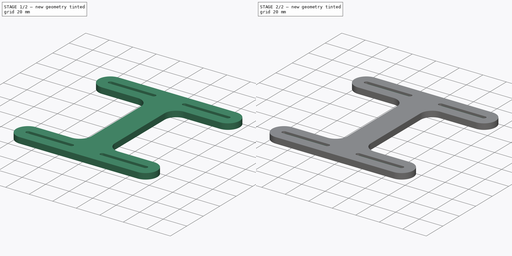
[diagram: build sequence overview — one tinted view per stage of 2, left to right]
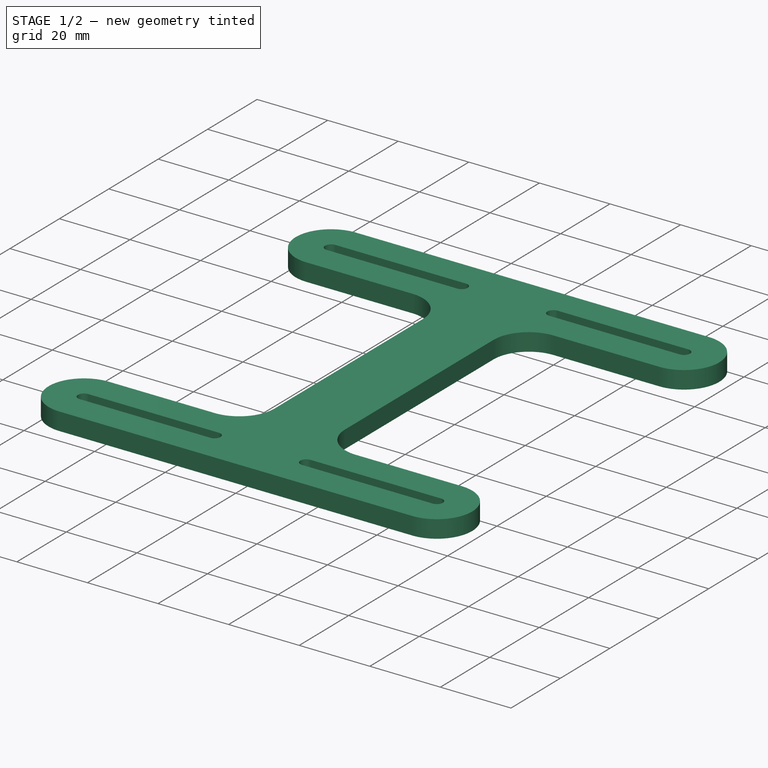
[diagram: stage 1 of 2 — iso view after this stage's code; geometry added in this stage tinted green]
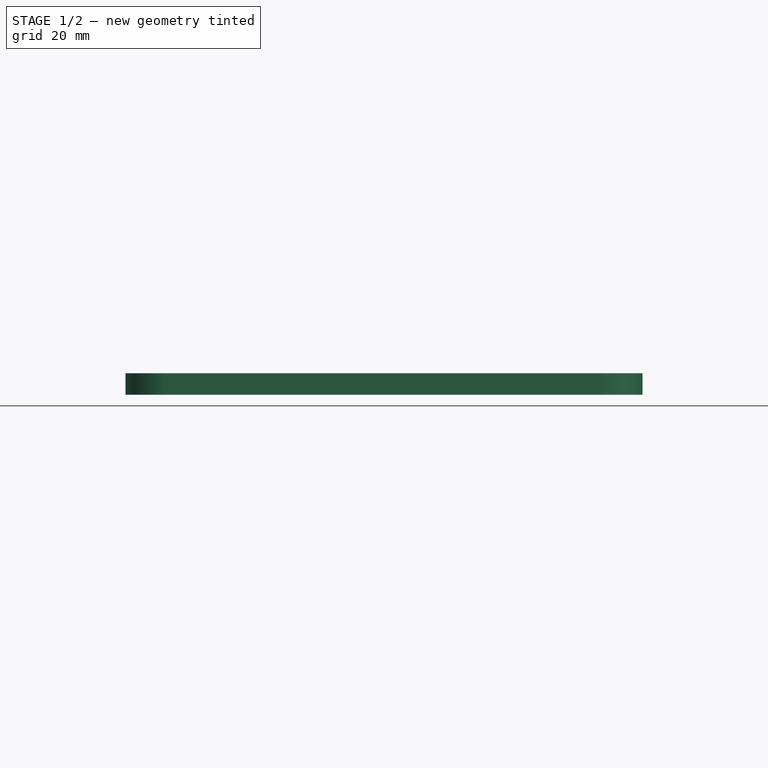
[diagram: stage 1 of 2 — front view after this stage's code; geometry added in this stage tinted green]
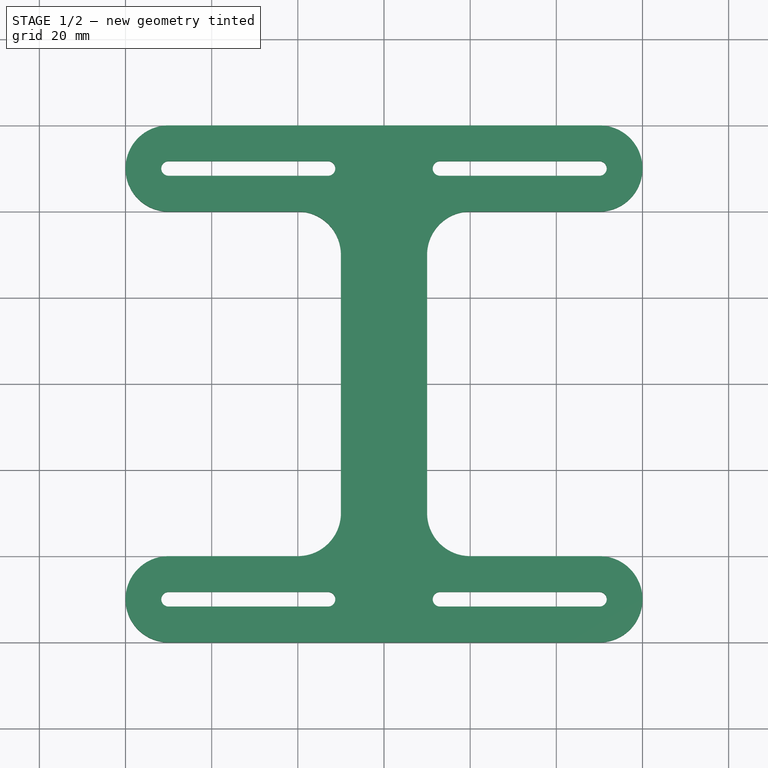
[diagram: stage 1 of 2 — top view after this stage's code; geometry added in this stage tinted green]
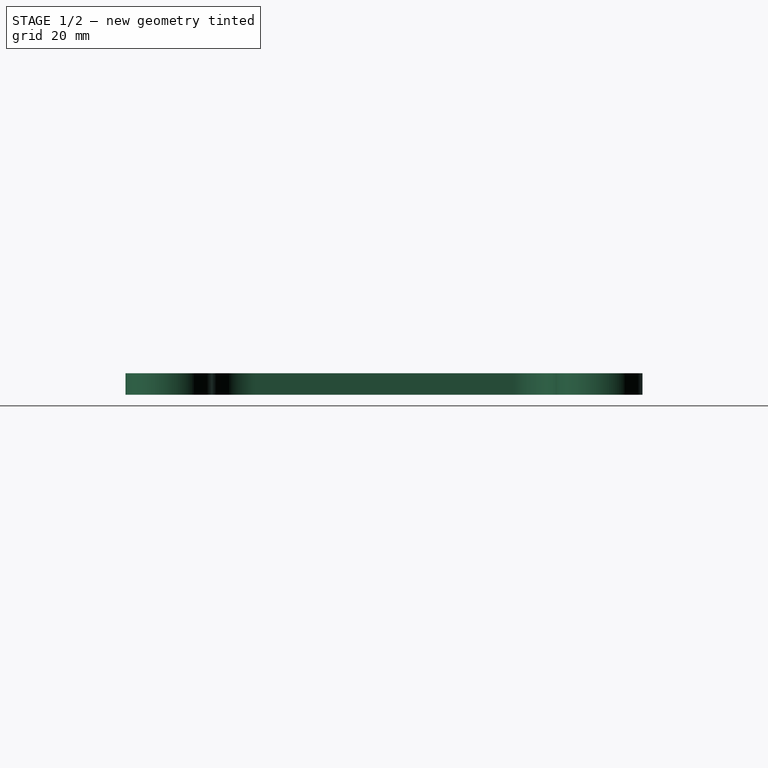
[diagram: stage 1 of 2 — right view after this stage's code; geometry added in this stage tinted green]
FCSTD DOCUMENT  (FreeCAD 0.17R13541 (Git))
Label: FilaRoller2
License: All rights reserved
LicenseURL: http://en.wikipedia.org/wiki/All_rights_reserved
objects: Sketcher::SketchObject×2, Spreadsheet::Sheet×1, PartDesign::Pad×1, PartDesign::Pocket×1, PartDesign::Body×1, App::Part×1
note: 7 computed .brp shape members not serialized (recipe doc carries the construction recipe); baked Part::Feature solids carry a one-line shape summary decoded from their .brp

FEATURE [Spreadsheet::Sheet] Spreadsheet  label="Params"
  cells = A2=StandLength; B2(StandLength)=100; A3=StandWidth; B3(StandWidth)=20; A4=BridgeLength; B4(BridgeLength)=100
FEATURE [Sketcher::SketchObject] Sketch  label="Stand"
  MapMode = 5
  expr: Constraints[179] = Params.StandWidth
  expr: Constraints[80] = Params.BridgeLength
  expr: Constraints[4] = Params.StandLength
  expr: Constraints[3] = Params.StandWidth
  sketch-geometry (66):
    g0: ArcOfCircle CenterX=-50 CenterY=-50 CenterZ=0 NormalX=0 NormalY=0 NormalZ=1 AngleXU=0 Radius=10 StartAngle=1.5708 EndAngle=4.71239
    g1: ArcOfCircle CenterX=50 CenterY=-50 CenterZ=0 NormalX=0 NormalY=0 NormalZ=1 AngleXU=0 Radius=10 StartAngle=4.71239 EndAngle=7.85398
    g2: LineSegment StartX=-50 StartY=-60 StartZ=0 EndX=50 EndY=-60 EndZ=0
    g3: Circle [constr] CenterX=0 CenterY=-50 CenterZ=0 NormalX=0 NormalY=0 NormalZ=1 AngleXU=0 Radius=1.7
    g4: ArcOfCircle CenterX=-50 CenterY=-50 CenterZ=0 NormalX=0 NormalY=0 NormalZ=1 AngleXU=0 Radius=1.7 StartAngle=1.5708 EndAngle=4.71239
    g5: ArcOfCircle CenterX=-13 CenterY=-50 CenterZ=0 NormalX=0 NormalY=0 NormalZ=1 AngleXU=0 Radius=1.7 StartAngle=4.71239 EndAngle=7.85398
    g6: LineSegment StartX=-50 StartY=-51.7 StartZ=0 EndX=-13 EndY=-51.7 EndZ=0
    g7: LineSegment StartX=-50 StartY=-48.3 StartZ=0 EndX=-13 EndY=-48.3 EndZ=0
    g8: ArcOfCircle CenterX=50 CenterY=-50 CenterZ=0 NormalX=0 NormalY=0 NormalZ=1 AngleXU=0 Radius=1.7 StartAngle=4.71239 EndAngle=7.85398
    g9: ArcOfCircle CenterX=13 CenterY=-50 CenterZ=0 NormalX=0 NormalY=0 NormalZ=1 AngleXU=0 Radius=1.7 StartAngle=1.5708 EndAngle=4.71239
    g10: LineSegment StartX=50 StartY=-48.3 StartZ=0 EndX=13 EndY=-48.3 EndZ=0
    g11: LineSegment StartX=50 StartY=-51.7 StartZ=0 EndX=13 EndY=-51.7 EndZ=0
    g12: ArcOfCircle CenterX=-50 CenterY=50 CenterZ=0 NormalX=0 NormalY=0 NormalZ=1 AngleXU=0 Radius=10 StartAngle=1.5708 EndAngle=4.71239
    g13: ArcOfCircle CenterX=50 CenterY=50 CenterZ=0 NormalX=0 NormalY=0 NormalZ=1 AngleXU=0 Radius=10 StartAngle=4.71239 EndAngle=7.85398
    g14: LineSegment StartX=-50 StartY=60 StartZ=0 EndX=50 EndY=60 EndZ=0
    g15: Circle [constr] CenterX=0 CenterY=50 CenterZ=0 NormalX=0 NormalY=0 NormalZ=1 AngleXU=0 Radius=1.7
    g16: ArcOfCircle CenterX=-50 CenterY=50 CenterZ=0 NormalX=0 NormalY=0 NormalZ=1 AngleXU=0 Radius=1.7 StartAngle=1.5708 EndAngle=4.71239
    g17: ArcOfCircle CenterX=-13 CenterY=50 CenterZ=0 NormalX=0 NormalY=0 NormalZ=1 AngleXU=0 Radius=1.7 StartAngle=4.71239 EndAngle=7.85398
    g18: LineSegment StartX=-50 StartY=51.7 StartZ=0 EndX=-13 EndY=51.7 EndZ=0
    g19: LineSegment StartX=-50 StartY=48.3 StartZ=0 EndX=-13 EndY=48.3 EndZ=0
    g20: ArcOfCircle CenterX=50 CenterY=50 CenterZ=0 NormalX=0 NormalY=0 NormalZ=1 AngleXU=0 Radius=1.7 StartAngle=4.71239 EndAngle=7.85398
    g21: ArcOfCircle CenterX=13 CenterY=50 CenterZ=0 NormalX=0 NormalY=0 NormalZ=1 AngleXU=0 Radius=1.7 StartAngle=1.5708 EndAngle=4.71239
    g22: LineSegment StartX=50 StartY=48.3 StartZ=0 EndX=13 EndY=48.3 EndZ=0
    g23: LineSegment StartX=50 StartY=51.7 StartZ=0 EndX=13 EndY=51.7 EndZ=0
    g24: LineSegment [constr] StartX=50 StartY=60 StartZ=0 EndX=50 EndY=40 EndZ=0
    g25: LineSegment [constr] StartX=-50 StartY=60 StartZ=0 EndX=-50 EndY=40 EndZ=0
    g26: LineSegment [constr] StartX=-50 StartY=-40 StartZ=0 EndX=-50 EndY=-60 EndZ=0
    g27: LineSegment [constr] StartX=50 StartY=-40 StartZ=0 EndX=50 EndY=-60 EndZ=0
    g28: LineSegment StartX=-50 StartY=40 StartZ=0 EndX=-20 EndY=40 EndZ=0
    g29: LineSegment StartX=-10 StartY=30 StartZ=0 EndX=-10 EndY=-30 EndZ=0
    g30: LineSegment StartX=-20 StartY=-40 StartZ=0 EndX=-50 EndY=-40 EndZ=0
    g31: LineSegment StartX=50 StartY=40 StartZ=0 EndX=20 EndY=40 EndZ=0
    g32: LineSegment StartX=10 StartY=30 StartZ=0 EndX=10 EndY=-30 EndZ=0
    g33: LineSegment StartX=20 StartY=-40 StartZ=0 EndX=50 EndY=-40 EndZ=0
    g34: ArcOfCircle [constr] CenterX=-13 CenterY=-50 CenterZ=0 NormalX=0 NormalY=0 NormalZ=1 AngleXU=0 Radius=3.4 StartAngle=4.71239 EndAngle=7.85398
    g35: ArcOfCircle [constr] CenterX=-50 CenterY=-50 CenterZ=0 NormalX=0 NormalY=0 NormalZ=1 AngleXU=0 Radius=3.4 StartAngle=1.5708 EndAngle=4.71239
    g36: LineSegment [constr] StartX=-13 StartY=-46.6 StartZ=0 EndX=-50 EndY=-46.6 EndZ=0
    g37: LineSegment [constr] StartX=-13 StartY=-53.4 StartZ=0 EndX=-50 EndY=-53.4 EndZ=0
    g38: LineSegment [constr] StartX=-13 StartY=-46.6 StartZ=0 EndX=-13 EndY=-53.4 EndZ=0
    g39: ArcOfCircle [constr] CenterX=13 CenterY=-50 CenterZ=0 NormalX=0 NormalY=0 NormalZ=1 AngleXU=0 Radius=3.4 StartAngle=1.5708 EndAngle=4.71239
    g40: ArcOfCircle [constr] CenterX=50 CenterY=-50 CenterZ=0 NormalX=0 NormalY=0 NormalZ=1 AngleXU=0 Radius=3.4 StartAngle=4.71239 EndAngle=7.85398
    g41: LineSegment [constr] StartX=13 StartY=-53.4 StartZ=0 EndX=50 EndY=-53.4 EndZ=0
    g42: LineSegment [constr] StartX=13 StartY=-46.6 StartZ=0 EndX=50 EndY=-46.6 EndZ=0
    g43: ArcOfCircle [constr] CenterX=-13 CenterY=50 CenterZ=0 NormalX=0 NormalY=0 NormalZ=1 AngleXU=0 Radius=3.4 StartAngle=4.71239 EndAngle=7.85398
    g44: ArcOfCircle [constr] CenterX=-50 CenterY=50 CenterZ=0 NormalX=0 NormalY=0 NormalZ=1 AngleXU=0 Radius=3.4 StartAngle=1.5708 EndAngle=4.71239
    g45: LineSegment [constr] StartX=-13 StartY=53.4 StartZ=0 EndX=-50 EndY=53.4 EndZ=0
    g46: LineSegment [constr] StartX=-13 StartY=46.6 StartZ=0 EndX=-50 EndY=46.6 EndZ=0
    g47: ArcOfCircle [constr] CenterX=13 CenterY=50 CenterZ=0 NormalX=0 NormalY=0 NormalZ=1 AngleXU=0 Radius=3.4 StartAngle=1.5708 EndAngle=4.71239
    g48: ArcOfCircle [constr] CenterX=50 CenterY=50 CenterZ=0 NormalX=0 NormalY=0 NormalZ=1 AngleXU=0 Radius=3.4 StartAngle=4.71239 EndAngle=7.85398
    g49: LineSegment [constr] StartX=13 StartY=46.6 StartZ=0 EndX=50 EndY=46.6 EndZ=0
    g50: LineSegment [constr] StartX=13 StartY=53.4 StartZ=0 EndX=50 EndY=53.4 EndZ=0
    g51: LineSegment [constr] StartX=13 StartY=-46.6 StartZ=0 EndX=13 EndY=-53.4 EndZ=0
    g52: LineSegment [constr] StartX=13 StartY=53.4 StartZ=0 EndX=13 EndY=46.6 EndZ=0
    g53: LineSegment [constr] StartX=-13 StartY=53.4 StartZ=0 EndX=-13 EndY=46.6 EndZ=0
    g54: ArcOfCircle CenterX=-20 CenterY=30 CenterZ=0 NormalX=0 NormalY=0 NormalZ=1 AngleXU=0 Radius=10 StartAngle=0 EndAngle=1.5708
    g55: ArcOfCircle CenterX=20 CenterY=30 CenterZ=0 NormalX=0 NormalY=0 NormalZ=1 AngleXU=0 Radius=10 StartAngle=1.5708 EndAngle=3.14159
    g56: ArcOfCircle CenterX=20 CenterY=-30 CenterZ=0 NormalX=0 NormalY=0 NormalZ=1 AngleXU=0 Radius=10 StartAngle=3.14159 EndAngle=4.71239
    g57: ArcOfCircle CenterX=-20 CenterY=-30 CenterZ=0 NormalX=0 NormalY=0 NormalZ=1 AngleXU=0 Radius=10 StartAngle=4.71239 EndAngle=6.28319
    g58: LineSegment [constr] StartX=-20 StartY=-30 StartZ=0 EndX=-10 EndY=-30 EndZ=0
    g59: LineSegment [constr] StartX=-20 StartY=-30 StartZ=0 EndX=-20 EndY=-40 EndZ=0
    g60: LineSegment [constr] StartX=20 StartY=-30 StartZ=0 EndX=10 EndY=-30 EndZ=0
    g61: LineSegment [constr] StartX=20 StartY=-30 StartZ=0 EndX=20 EndY=-40 EndZ=0
    g62: LineSegment [constr] StartX=-20 StartY=30 StartZ=0 EndX=-20 EndY=40 EndZ=0
    g63: LineSegment [constr] StartX=-20 StartY=30 StartZ=0 EndX=-10 EndY=30 EndZ=0
    g64: LineSegment [constr] StartX=20 StartY=30 StartZ=0 EndX=20 EndY=40 EndZ=0
    g65: LineSegment [constr] StartX=20 StartY=30 StartZ=0 EndX=10 EndY=30 EndZ=0
  constraints (197):
    c: Horizontal(g2)
    c: Equal(g0,g1)
    c: Symmetric(g0,g1,g3)
    c: DistanceY(g0,g0) = 20
    c: DistanceX(g2,g2) = 100
    c: Horizontal(g6)
    c: Equal(g4,g5)
    c: Coincident(g4,g0)
    c: Horizontal(g10)
    c: Equal(g8,g9)
    c: Coincident(g8,g1)
    c: Equal(g10,g7)
    c: Equal(g5,g9)
    c: DistanceX(g5,g9) = 26
    c: Radius(g3) = 1.7
    c: Equal(g3,g5)
    c: PointOnObject(g3,g-2)
    c: Horizontal(g14)
    c: Equal(g12,g13)
    c: Symmetric(g12,g13,g15)
    c: Horizontal(g18)
    c: Equal(g16,g17)
    c: Coincident(g16,g12)
    c: Horizontal(g22)
    c: Equal(g20,g21)
    c: Coincident(g20,g13)
    c: Equal(g22,g19)
    c: Equal(g17,g21)
    c: Equal(g15,g17)
    c: Equal(g19,g22)
    c: Equal(g22,g10)
    c: Equal(g2,g14)
    c: Equal(g0,g12)
    c: Equal(g3,g15)
    c: PointOnObject(g15,g-2)
    c: Symmetric(g3,g15,g-1)
    c: Coincident(g12,g14)
    c: Coincident(g16,g18)
    c: Coincident(g16,g19)
    c: Coincident(g17,g18)
    c: Coincident(g17,g19)
    c: Coincident(g21,g23)
    c: Coincident(g21,g22)
    c: Coincident(g13,g14)
    c: Coincident(g20,g23)
    c: Coincident(g20,g22)
    c: Coincident(g24,g13)
    c: Coincident(g24,g13)
    c: Vertical(g24)
    c: PointOnObject(g23,g24)
    c: PointOnObject(g20,g24)
    c: PointOnObject(g20,g24)
    c: Coincident(g25,g12)
    c: Coincident(g25,g12)
    c: Vertical(g25)
    c: PointOnObject(g16,g25)
    c: PointOnObject(g12,g25)
    c: PointOnObject(g16,g25)
    c: Coincident(g4,g7)
    c: Coincident(g4,g6)
    c: Coincident(g0,g2)
    c: Coincident(g26,g0)
    c: Coincident(g26,g0)
    c: Vertical(g26)
    c: PointOnObject(g4,g26)
    c: PointOnObject(g0,g26)
    c: PointOnObject(g4,g26)
    c: Coincident(g8,g10)
    c: Coincident(g8,g11)
    c: Coincident(g1,g2)
    c: Coincident(g9,g10)
    c: Coincident(g9,g11)
    c: Coincident(g5,g7)
    c: Coincident(g5,g6)
    c: Coincident(g27,g1)
    c: Coincident(g27,g1)
    c: Vertical(g27)
    c: PointOnObject(g8,g27)
    c: PointOnObject(g1,g27)
    c: PointOnObject(g8,g27)
    c: DistanceY(g1,g13) = 100
    c: Vertical(g29)
    c: Coincident(g30,g0)
    c: Horizontal(g30)
    c: Vertical(g32)
    c: Coincident(g33,g1)
    c: Horizontal(g33)
    c: Equal(g28,g31)
    c: Coincident(g12,g28)
    c: Horizontal(g28)
    c: Coincident(g13,g31)
    c: Horizontal(g31)
    c: Horizontal(g36)
    c: Equal(g34,g35)
    c: Coincident(g34,g5)
    c: PointOnObject(g35,g26)
    c: Radius(g35) = 3.4
    c: Coincident(g38,g34)
    c: Coincident(g38,g34)
    c: Vertical(g38)
    c: PointOnObject(g5,g38)
    c: PointOnObject(g5,g38)
    c: PointOnObject(g5,g38)
    c: Coincident(g34,g36)
    c: Coincident(g34,g37)
    c: Horizontal(g41)
    c: Equal(g39,g40)
    c: Coincident(g39,g9)
    c: Coincident(g1,g40)
    c: Coincident(g40,g42)
    c: Coincident(g40,g41)
    c: PointOnObject(g40,g27)
    c: PointOnObject(g40,g27)
    c: Equal(g34,g39)
    c: Horizontal(g45)
    c: Equal(g43,g44)
    c: Coincident(g43,g17)
    c: Coincident(g12,g44)
    c: Equal(g44,g35)
    c: Horizontal(g49)
    c: Equal(g47,g48)
    c: Coincident(g47,g21)
    c: Coincident(g13,g48)
    c: Equal(g43,g47)
    c: Coincident(g44,g46)
    c: Coincident(g44,g45)
    c: PointOnObject(g44,g25)
    c: PointOnObject(g44,g25)
    c: Coincident(g48,g50)
    c: Coincident(g48,g49)
    c: PointOnObject(g48,g24)
    c: PointOnObject(g48,g24)
    c: Coincident(g35,g37)
    c: Coincident(g35,g36)
    c: PointOnObject(g35,g26)
    c: Coincident(g0,g35)
    c: Coincident(g39,g41)
    c: Coincident(g39,g42)
    c: Coincident(g51,g39)
    c: Coincident(g51,g39)
    c: Vertical(g51)
    c: PointOnObject(g9,g51)
    c: PointOnObject(g9,g51)
    c: PointOnObject(g9,g51)
    c: Coincident(g47,g50)
    c: Coincident(g47,g49)
    c: Coincident(g52,g47)
    c: Coincident(g52,g47)
    c: Vertical(g52)
    c: PointOnObject(g21,g52)
    c: PointOnObject(g21,g52)
    c: PointOnObject(g21,g52)
    c: Coincident(g43,g45)
    c: Coincident(g43,g46)
    c: Coincident(g53,g43)
    c: Coincident(g53,g43)
    c: Vertical(g53)
    c: PointOnObject(g17,g53)
    c: PointOnObject(g17,g53)
    c: PointOnObject(g17,g53)
    c: Coincident(g33,g56)
    c: Coincident(g30,g57)
    c: Coincident(g29,g57)
    c: Coincident(g32,g56)
    c: Coincident(g58,g57)
    c: Horizontal(g58)
    c: Coincident(g29,g58)
    c: Coincident(g59,g57)
    c: Coincident(g59,g30)
    c: Vertical(g59)
    c: Coincident(g60,g56)
    c: Horizontal(g60)
    c: Coincident(g32,g60)
    c: Coincident(g61,g56)
    c: Coincident(g61,g33)
    c: Vertical(g61)
    c: Equal(g57,g56)
    c: Equal(g56,g55)
    c: Equal(g55,g54)
    c: DistanceX(g29,g32) = 20
    c: Equal(g54,g12)
    c: Coincident(g28,g54)
    c: Coincident(g29,g54)
    c: Coincident(g32,g55)
    c: Coincident(g31,g55)
    c: Coincident(g62,g54)
    c: Coincident(g62,g28)
    c: Vertical(g62)
    c: Coincident(g63,g54)
    c: Coincident(g63,g29)
    c: Horizontal(g63)
    c: Coincident(g64,g55)
    c: Coincident(g64,g31)
    c: Vertical(g64)
    c: Coincident(g65,g55)
    c: Coincident(g65,g32)
    c: Horizontal(g65)
FEATURE [Sketcher::SketchObject] Sketch001  label="StandGroove"
  MapMode = 5
  expr: Constraints[179] = Params.StandWidth
  expr: Constraints[80] = Params.BridgeLength
  expr: Constraints[4] = Params.StandLength
  expr: Constraints[3] = Params.StandWidth
  sketch-geometry (66):
    g0: ArcOfCircle [constr] CenterX=-50 CenterY=-50 CenterZ=0 NormalX=0 NormalY=0 NormalZ=1 AngleXU=0 Radius=10 StartAngle=1.5708 EndAngle=4.71239
    g1: ArcOfCircle [constr] CenterX=50 CenterY=-50 CenterZ=0 NormalX=0 NormalY=0 NormalZ=1 AngleXU=0 Radius=10 StartAngle=4.71239 EndAngle=7.85398
    g2: LineSegment [constr] StartX=-50 StartY=-60 StartZ=0 EndX=50 EndY=-60 EndZ=0
    g3: Circle [constr] CenterX=0 CenterY=-50 CenterZ=0 NormalX=0 NormalY=0 NormalZ=1 AngleXU=0 Radius=1.7
    g4: ArcOfCircle [constr] CenterX=-50 CenterY=-50 CenterZ=0 NormalX=0 NormalY=0 NormalZ=1 AngleXU=0 Radius=1.7 StartAngle=1.5708 EndAngle=4.71239
    g5: ArcOfCircle [constr] CenterX=-13 CenterY=-50 CenterZ=0 NormalX=0 NormalY=0 NormalZ=1 AngleXU=0 Radius=1.7 StartAngle=4.71239 EndAngle=7.85398
    g6: LineSegment [constr] StartX=-50 StartY=-51.7 StartZ=0 EndX=-13 EndY=-51.7 EndZ=0
    g7: LineSegment [constr] StartX=-50 StartY=-48.3 StartZ=0 EndX=-13 EndY=-48.3 EndZ=0
    g8: ArcOfCircle [constr] CenterX=50 CenterY=-50 CenterZ=0 NormalX=0 NormalY=0 NormalZ=1 AngleXU=0 Radius=1.7 StartAngle=4.71239 EndAngle=7.85398
    g9: ArcOfCircle [constr] CenterX=13 CenterY=-50 CenterZ=0 NormalX=0 NormalY=0 NormalZ=1 AngleXU=0 Radius=1.7 StartAngle=1.5708 EndAngle=4.71239
    g10: LineSegment [constr] StartX=50 StartY=-48.3 StartZ=0 EndX=13 EndY=-48.3 EndZ=0
    g11: LineSegment [constr] StartX=50 StartY=-51.7 StartZ=0 EndX=13 EndY=-51.7 EndZ=0
    g12: ArcOfCircle [constr] CenterX=-50 CenterY=50 CenterZ=0 NormalX=0 NormalY=0 NormalZ=1 AngleXU=0 Radius=10 StartAngle=1.5708 EndAngle=4.71239
    g13: ArcOfCircle [constr] CenterX=50 CenterY=50 CenterZ=0 NormalX=0 NormalY=0 NormalZ=1 AngleXU=0 Radius=10 StartAngle=4.71239 EndAngle=7.85398
    g14: LineSegment [constr] StartX=-50 StartY=60 StartZ=0 EndX=50 EndY=60 EndZ=0
    g15: Circle [constr] CenterX=0 CenterY=50 CenterZ=0 NormalX=0 NormalY=0 NormalZ=1 AngleXU=0 Radius=1.7
    g16: ArcOfCircle [constr] CenterX=-50 CenterY=50 CenterZ=0 NormalX=0 NormalY=0 NormalZ=1 AngleXU=0 Radius=1.7 StartAngle=1.5708 EndAngle=4.71239
    g17: ArcOfCircle [constr] CenterX=-13 CenterY=50 CenterZ=0 NormalX=0 NormalY=0 NormalZ=1 AngleXU=0 Radius=1.7 StartAngle=4.71239 EndAngle=7.85398
    g18: LineSegment [constr] StartX=-50 StartY=51.7 StartZ=0 EndX=-13 EndY=51.7 EndZ=0
    g19: LineSegment [constr] StartX=-50 StartY=48.3 StartZ=0 EndX=-13 EndY=48.3 EndZ=0
    g20: ArcOfCircle [constr] CenterX=50 CenterY=50 CenterZ=0 NormalX=0 NormalY=0 NormalZ=1 AngleXU=0 Radius=1.7 StartAngle=4.71239 EndAngle=7.85398
    g21: ArcOfCircle [constr] CenterX=13 CenterY=50 CenterZ=0 NormalX=0 NormalY=0 NormalZ=1 AngleXU=0 Radius=1.7 StartAngle=1.5708 EndAngle=4.71239
    g22: LineSegment [constr] StartX=50 StartY=48.3 StartZ=0 EndX=13 EndY=48.3 EndZ=0
    g23: LineSegment [constr] StartX=50 StartY=51.7 StartZ=0 EndX=13 EndY=51.7 EndZ=0
    g24: LineSegment [constr] StartX=50 StartY=60 StartZ=0 EndX=50 EndY=40 EndZ=0
    g25: LineSegment [constr] StartX=-50 StartY=60 StartZ=0 EndX=-50 EndY=40 EndZ=0
    g26: LineSegment [constr] StartX=-50 StartY=-40 StartZ=0 EndX=-50 EndY=-60 EndZ=0
    g27: LineSegment [constr] StartX=50 StartY=-40 StartZ=0 EndX=50 EndY=-60 EndZ=0
    g28: LineSegment [constr] StartX=-50 StartY=40 StartZ=0 EndX=-20 EndY=40 EndZ=0
    g29: LineSegment [constr] StartX=-10 StartY=30 StartZ=0 EndX=-10 EndY=-30 EndZ=0
    g30: LineSegment [constr] StartX=-20 StartY=-40 StartZ=0 EndX=-50 EndY=-40 EndZ=0
    g31: LineSegment [constr] StartX=50 StartY=40 StartZ=0 EndX=20 EndY=40 EndZ=0
    g32: LineSegment [constr] StartX=10 StartY=30 StartZ=0 EndX=10 EndY=-30 EndZ=0
    g33: LineSegment [constr] StartX=20 StartY=-40 StartZ=0 EndX=50 EndY=-40 EndZ=0
    g34: ArcOfCircle CenterX=-13 CenterY=-50 CenterZ=0 NormalX=0 NormalY=0 NormalZ=1 AngleXU=0 Radius=3.4 StartAngle=4.71239 EndAngle=7.85398
    g35: ArcOfCircle CenterX=-50 CenterY=-50 CenterZ=0 NormalX=0 NormalY=0 NormalZ=1 AngleXU=0 Radius=3.4 StartAngle=1.5708 EndAngle=4.71239
    g36: LineSegment StartX=-13 StartY=-46.6 StartZ=0 EndX=-50 EndY=-46.6 EndZ=0
    g37: LineSegment StartX=-13 StartY=-53.4 StartZ=0 EndX=-50 EndY=-53.4 EndZ=0
    g38: LineSegment [constr] StartX=-13 StartY=-46.6 StartZ=0 EndX=-13 EndY=-53.4 EndZ=0
    g39: ArcOfCircle CenterX=13 CenterY=-50 CenterZ=0 NormalX=0 NormalY=0 NormalZ=1 AngleXU=0 Radius=3.4 StartAngle=1.5708 EndAngle=4.71239
    g40: ArcOfCircle CenterX=50 CenterY=-50 CenterZ=0 NormalX=0 NormalY=0 NormalZ=1 AngleXU=0 Radius=3.4 StartAngle=4.71239 EndAngle=7.85398
    g41: LineSegment StartX=13 StartY=-53.4 StartZ=0 EndX=50 EndY=-53.4 EndZ=0
    g42: LineSegment StartX=13 StartY=-46.6 StartZ=0 EndX=50 EndY=-46.6 EndZ=0
    g43: ArcOfCircle CenterX=-13 CenterY=50 CenterZ=0 NormalX=0 NormalY=0 NormalZ=1 AngleXU=0 Radius=3.4 StartAngle=4.71239 EndAngle=7.85398
    g44: ArcOfCircle CenterX=-50 CenterY=50 CenterZ=0 NormalX=0 NormalY=0 NormalZ=1 AngleXU=0 Radius=3.4 StartAngle=1.5708 EndAngle=4.71239
    g45: LineSegment StartX=-13 StartY=53.4 StartZ=0 EndX=-50 EndY=53.4 EndZ=0
    g46: LineSegment StartX=-13 StartY=46.6 StartZ=0 EndX=-50 EndY=46.6 EndZ=0
    g47: ArcOfCircle CenterX=13 CenterY=50 CenterZ=0 NormalX=0 NormalY=0 NormalZ=1 AngleXU=0 Radius=3.4 StartAngle=1.5708 EndAngle=4.71239
    g48: ArcOfCircle CenterX=50 CenterY=50 CenterZ=0 NormalX=0 NormalY=0 NormalZ=1 AngleXU=0 Radius=3.4 StartAngle=4.71239 EndAngle=7.85398
    g49: LineSegment StartX=13 StartY=46.6 StartZ=0 EndX=50 EndY=46.6 EndZ=0
    g50: LineSegment StartX=13 StartY=53.4 StartZ=0 EndX=50 EndY=53.4 EndZ=0
    g51: LineSegment [constr] StartX=13 StartY=-46.6 StartZ=0 EndX=13 EndY=-53.4 EndZ=0
    g52: LineSegment [constr] StartX=13 StartY=53.4 StartZ=0 EndX=13 EndY=46.6 EndZ=0
    g53: LineSegment [constr] StartX=-13 StartY=53.4 StartZ=0 EndX=-13 EndY=46.6 EndZ=0
    g54: ArcOfCircle [constr] CenterX=-20 CenterY=30 CenterZ=0 NormalX=0 NormalY=0 NormalZ=1 AngleXU=0 Radius=10 StartAngle=0 EndAngle=1.5708
    g55: ArcOfCircle [constr] CenterX=20 CenterY=30 CenterZ=0 NormalX=0 NormalY=0 NormalZ=1 AngleXU=0 Radius=10 StartAngle=1.5708 EndAngle=3.14159
    g56: ArcOfCircle [constr] CenterX=20 CenterY=-30 CenterZ=0 NormalX=0 NormalY=0 NormalZ=1 AngleXU=0 Radius=10 StartAngle=3.14159 EndAngle=4.71239
    g57: ArcOfCircle [constr] CenterX=-20 CenterY=-30 CenterZ=0 NormalX=0 NormalY=0 NormalZ=1 AngleXU=0 Radius=10 StartAngle=4.71239 EndAngle=6.28319
    g58: LineSegment [constr] StartX=-20 StartY=-30 StartZ=0 EndX=-10 EndY=-30 EndZ=0
    g59: LineSegment [constr] StartX=-20 StartY=-30 StartZ=0 EndX=-20 EndY=-40 EndZ=0
    g60: LineSegment [constr] StartX=20 StartY=-30 StartZ=0 EndX=10 EndY=-30 EndZ=0
    g61: LineSegment [constr] StartX=20 StartY=-30 StartZ=0 EndX=20 EndY=-40 EndZ=0
    g62: LineSegment [constr] StartX=-20 StartY=30 StartZ=0 EndX=-20 EndY=40 EndZ=0
    g63: LineSegment [constr] StartX=-20 StartY=30 StartZ=0 EndX=-10 EndY=30 EndZ=0
    g64: LineSegment [constr] StartX=20 StartY=30 StartZ=0 EndX=20 EndY=40 EndZ=0
    g65: LineSegment [constr] StartX=20 StartY=30 StartZ=0 EndX=10 EndY=30 EndZ=0
  constraints (197):
    c: Horizontal(g2)
    c: Equal(g0,g1)
    c: Symmetric(g0,g1,g3)
    c: DistanceY(g0,g0) = 20
    c: DistanceX(g2,g2) = 100
    c: Horizontal(g6)
    c: Equal(g4,g5)
    c: Coincident(g4,g0)
    c: Horizontal(g10)
    c: Equal(g8,g9)
    c: Coincident(g8,g1)
    c: Equal(g10,g7)
    c: Equal(g5,g9)
    c: DistanceX(g5,g9) = 26
    c: Radius(g3) = 1.7
    c: Equal(g3,g5)
    c: PointOnObject(g3,g-2)
    c: Horizontal(g14)
    c: Equal(g12,g13)
    c: Symmetric(g12,g13,g15)
    c: Horizontal(g18)
    c: Equal(g16,g17)
    c: Coincident(g16,g12)
    c: Horizontal(g22)
    c: Equal(g20,g21)
    c: Coincident(g20,g13)
    c: Equal(g22,g19)
    c: Equal(g17,g21)
    c: Equal(g15,g17)
    c: Equal(g19,g22)
    c: Equal(g22,g10)
    c: Equal(g2,g14)
    c: Equal(g0,g12)
    c: Equal(g3,g15)
    c: PointOnObject(g15,g-2)
    c: Symmetric(g3,g15,g-1)
    c: Coincident(g12,g14)
    c: Coincident(g16,g18)
    c: Coincident(g16,g19)
    c: Coincident(g17,g18)
    c: Coincident(g17,g19)
    c: Coincident(g21,g23)
    c: Coincident(g21,g22)
    c: Coincident(g13,g14)
    c: Coincident(g20,g23)
    c: Coincident(g20,g22)
    c: Coincident(g24,g13)
    c: Coincident(g24,g13)
    c: Vertical(g24)
    c: PointOnObject(g23,g24)
    c: PointOnObject(g20,g24)
    c: PointOnObject(g20,g24)
    c: Coincident(g25,g12)
    c: Coincident(g25,g12)
    c: Vertical(g25)
    c: PointOnObject(g16,g25)
    c: PointOnObject(g12,g25)
    c: PointOnObject(g16,g25)
    c: Coincident(g4,g7)
    c: Coincident(g4,g6)
    c: Coincident(g0,g2)
    c: Coincident(g26,g0)
    c: Coincident(g26,g0)
    c: Vertical(g26)
    c: PointOnObject(g4,g26)
    c: PointOnObject(g0,g26)
    c: PointOnObject(g4,g26)
    c: Coincident(g8,g10)
    c: Coincident(g8,g11)
    c: Coincident(g1,g2)
    c: Coincident(g9,g10)
    c: Coincident(g9,g11)
    c: Coincident(g5,g7)
    c: Coincident(g5,g6)
    c: Coincident(g27,g1)
    c: Coincident(g27,g1)
    c: Vertical(g27)
    c: PointOnObject(g8,g27)
    c: PointOnObject(g1,g27)
    c: PointOnObject(g8,g27)
    c: DistanceY(g1,g13) = 100
    c: Vertical(g29)
    c: Coincident(g30,g0)
    c: Horizontal(g30)
    c: Vertical(g32)
    c: Coincident(g33,g1)
    c: Horizontal(g33)
    c: Equal(g28,g31)
    c: Coincident(g12,g28)
    c: Horizontal(g28)
    c: Coincident(g13,g31)
    c: Horizontal(g31)
    c: Horizontal(g36)
    c: Equal(g34,g35)
    c: Coincident(g34,g5)
    c: PointOnObject(g35,g26)
    c: Radius(g35) = 3.4
    c: Coincident(g38,g34)
    c: Coincident(g38,g34)
    c: Vertical(g38)
    c: PointOnObject(g5,g38)
    c: PointOnObject(g5,g38)
    c: PointOnObject(g5,g38)
    c: Coincident(g34,g36)
    c: Coincident(g34,g37)
    c: Horizontal(g41)
    c: Equal(g39,g40)
    c: Coincident(g39,g9)
    c: Coincident(g1,g40)
    c: Coincident(g40,g42)
    c: Coincident(g40,g41)
    c: PointOnObject(g40,g27)
    c: PointOnObject(g40,g27)
    c: Equal(g34,g39)
    c: Horizontal(g45)
    c: Equal(g43,g44)
    c: Coincident(g43,g17)
    c: Coincident(g12,g44)
    c: Equal(g44,g35)
    c: Horizontal(g49)
    c: Equal(g47,g48)
    c: Coincident(g47,g21)
    c: Coincident(g13,g48)
    c: Equal(g43,g47)
    c: Coincident(g44,g46)
    c: Coincident(g44,g45)
    c: PointOnObject(g44,g25)
    c: PointOnObject(g44,g25)
    c: Coincident(g48,g50)
    c: Coincident(g48,g49)
    c: PointOnObject(g48,g24)
    c: PointOnObject(g48,g24)
    c: Coincident(g35,g37)
    c: Coincident(g35,g36)
    c: PointOnObject(g35,g26)
    c: Coincident(g0,g35)
    c: Coincident(g39,g41)
    c: Coincident(g39,g42)
    c: Coincident(g51,g39)
    c: Coincident(g51,g39)
    c: Vertical(g51)
    c: PointOnObject(g9,g51)
    c: PointOnObject(g9,g51)
    c: PointOnObject(g9,g51)
    c: Coincident(g47,g50)
    c: Coincident(g47,g49)
    c: Coincident(g52,g47)
    c: Coincident(g52,g47)
    c: Vertical(g52)
    c: PointOnObject(g21,g52)
    c: PointOnObject(g21,g52)
    c: PointOnObject(g21,g52)
    c: Coincident(g43,g45)
    c: Coincident(g43,g46)
    c: Coincident(g53,g43)
    c: Coincident(g53,g43)
    c: Vertical(g53)
    c: PointOnObject(g17,g53)
    c: PointOnObject(g17,g53)
    c: PointOnObject(g17,g53)
    c: Coincident(g33,g56)
    c: Coincident(g30,g57)
    c: Coincident(g29,g57)
    c: Coincident(g32,g56)
    c: Coincident(g58,g57)
    c: Horizontal(g58)
    c: Coincident(g29,g58)
    c: Coincident(g59,g57)
    c: Coincident(g59,g30)
    c: Vertical(g59)
    c: Coincident(g60,g56)
    c: Horizontal(g60)
    c: Coincident(g32,g60)
    c: Coincident(g61,g56)
    c: Coincident(g61,g33)
    c: Vertical(g61)
    c: Equal(g57,g56)
    c: Equal(g56,g55)
    c: Equal(g55,g54)
    c: DistanceX(g29,g32) = 20
    c: Equal(g54,g12)
    c: Coincident(g28,g54)
    c: Coincident(g29,g54)
    c: Coincident(g32,g55)
    c: Coincident(g31,g55)
    c: Coincident(g62,g54)
    c: Coincident(g62,g28)
    c: Vertical(g62)
    c: Coincident(g63,g54)
    c: Coincident(g63,g29)
    c: Horizontal(g63)
    c: Coincident(g64,g55)
    c: Coincident(g64,g31)
    c: Vertical(g64)
    c: Coincident(g65,g55)
    c: Coincident(g65,g32)
    c: Horizontal(g65)
FEATURE [PartDesign::Pad] Pad
  Length = 5
  Length2 = 100
  Profile = -> Sketch
  Type = 0
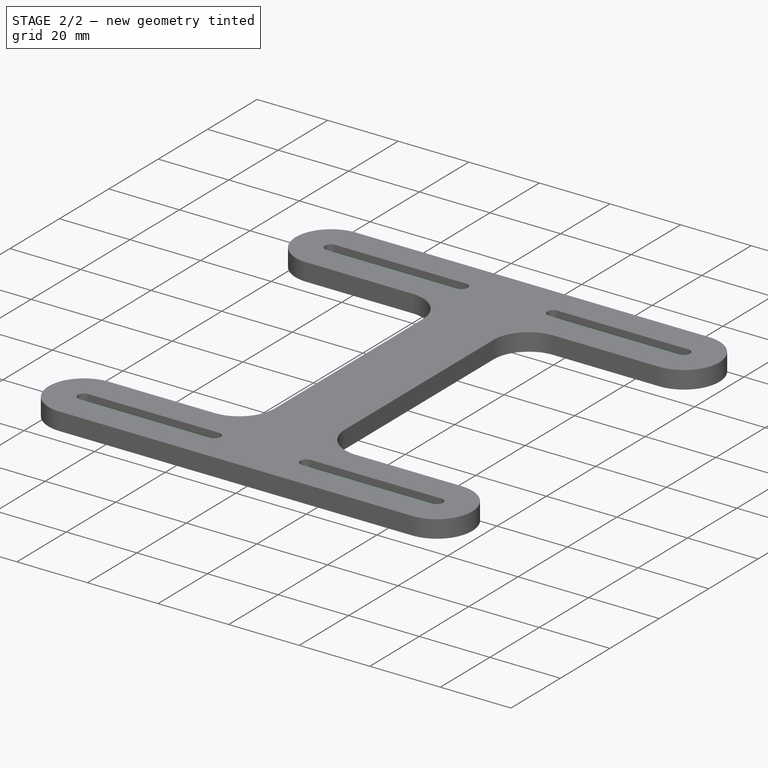
[diagram: stage 2 of 2 — iso view after this stage's code; geometry added in this stage tinted green]
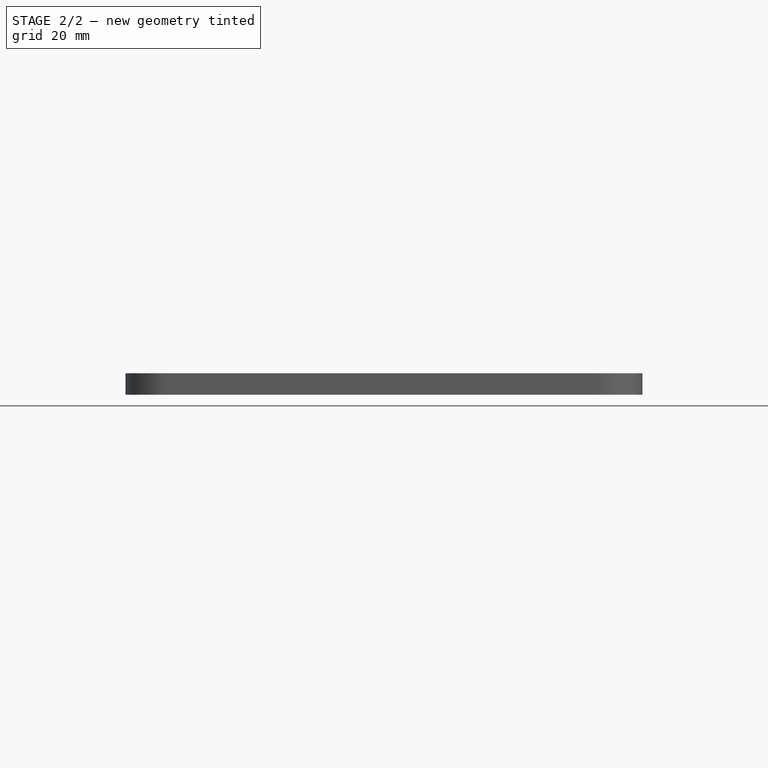
[diagram: stage 2 of 2 — front view after this stage's code; geometry added in this stage tinted green]
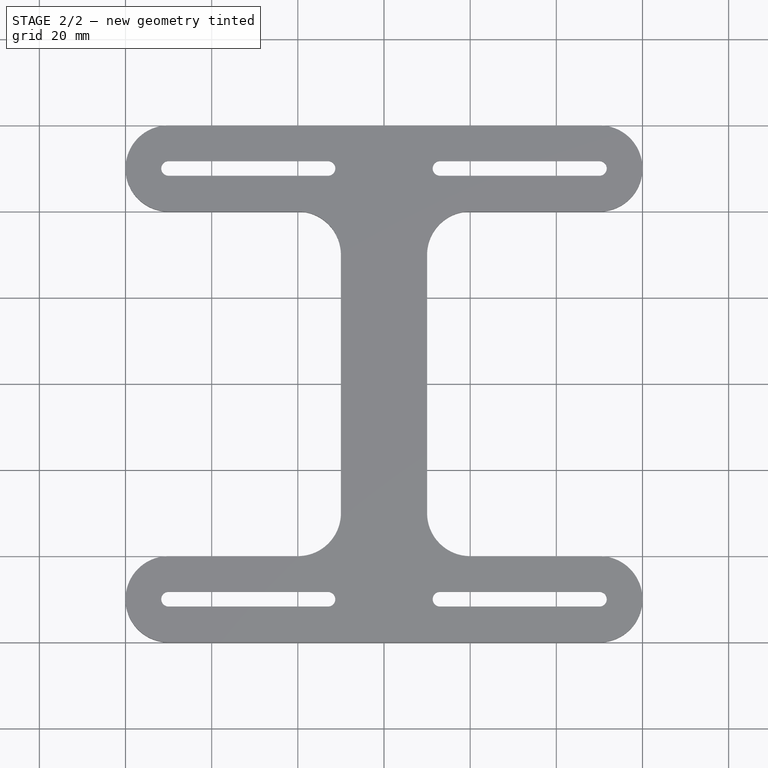
[diagram: stage 2 of 2 — top view after this stage's code; geometry added in this stage tinted green]
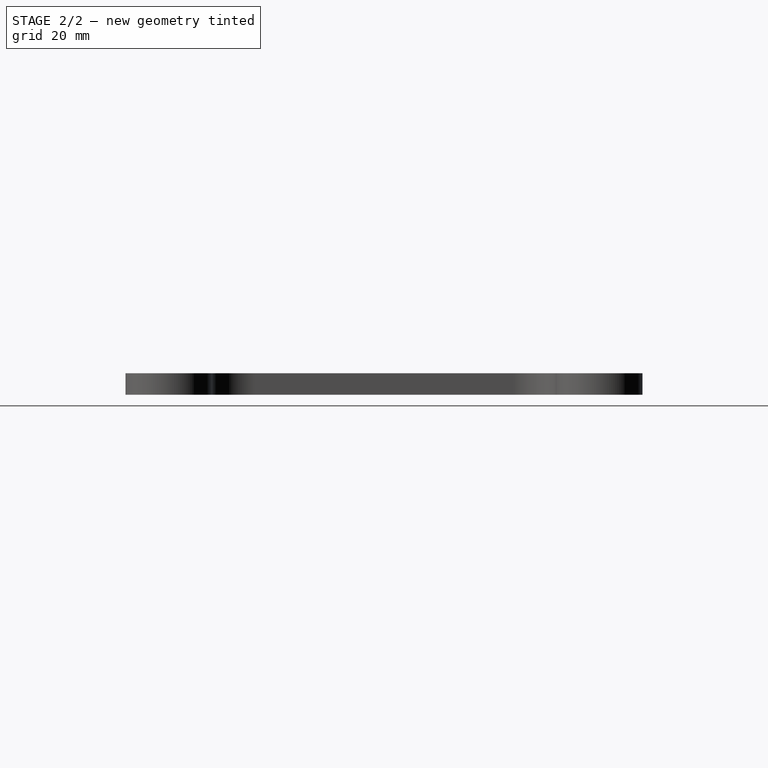
[diagram: stage 2 of 2 — right view after this stage's code; geometry added in this stage tinted green]
FEATURE [PartDesign::Pocket] Pocket
  BaseFeature = -> Pad
  Length = 3.2
  Length2 = 100
  Profile = -> Sketch001
  Reversed = true
  Type = 0
FEATURE [PartDesign::Body] Body
  Group = -> [Sketch,Sketch001,Pad,Pocket]
  Origin = -> Origin001
  Tip = -> Pocket
FEATURE [App::Part] Part
  Group = -> [Body]
  License = CC BY 3.0
  LicenseURL = http://creativecommons.org/licenses/by/3.0/
  Origin = -> Origin
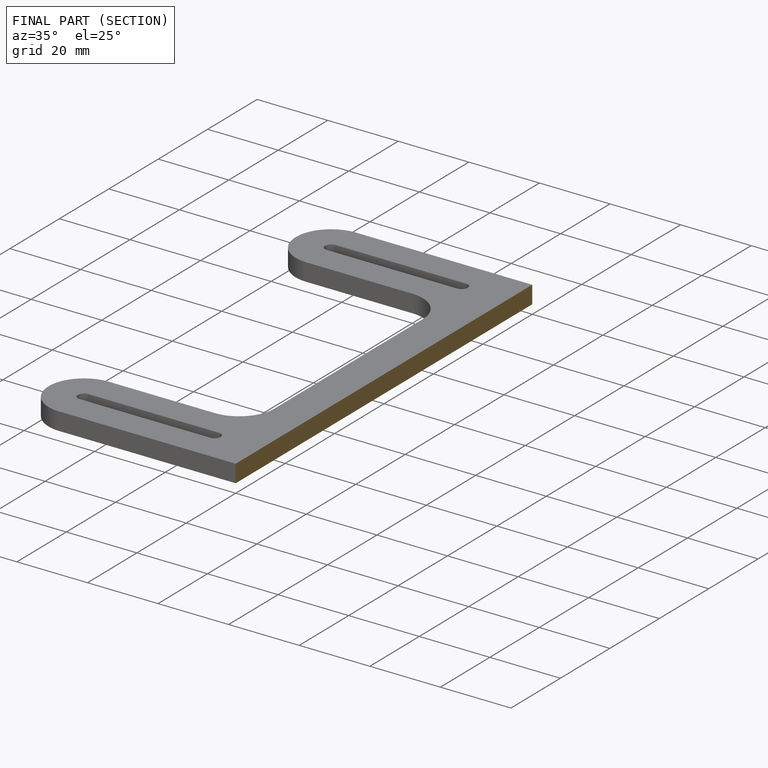
[diagram: finished part — half-section view (interior)]
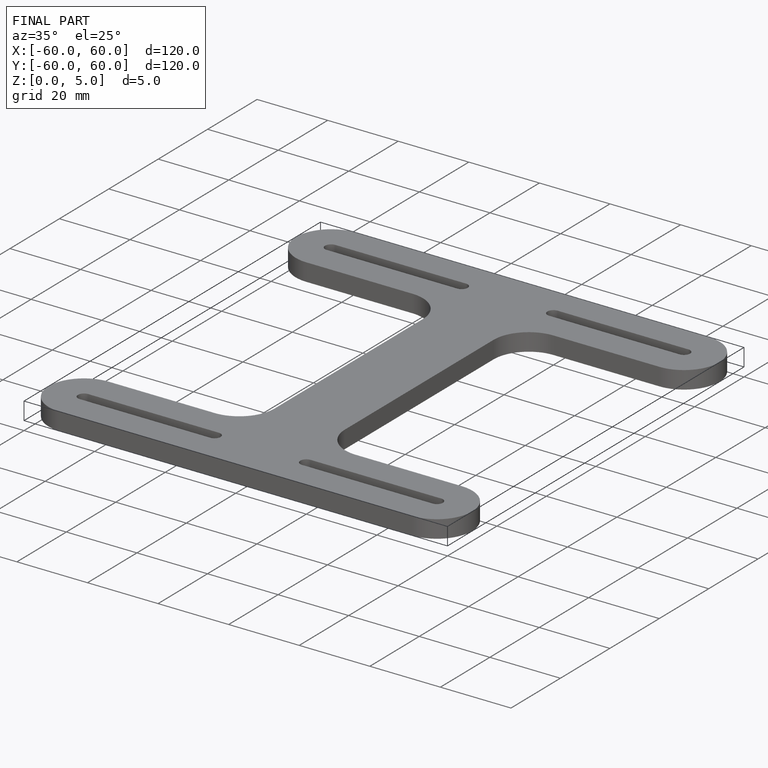
[diagram: finished part — iso view with bounding-box wireframe]
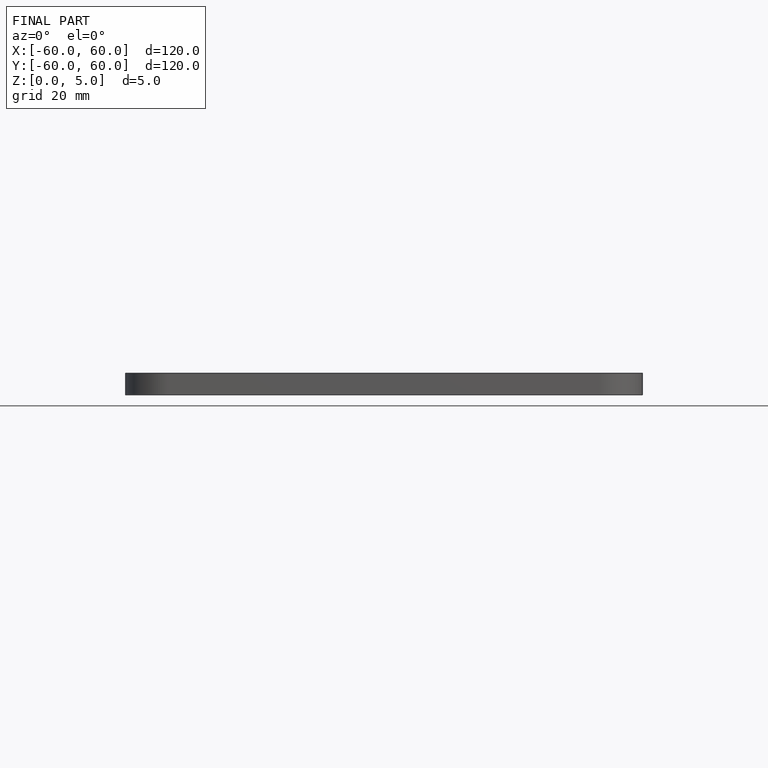
[diagram: finished part — front view with bounding-box wireframe]
